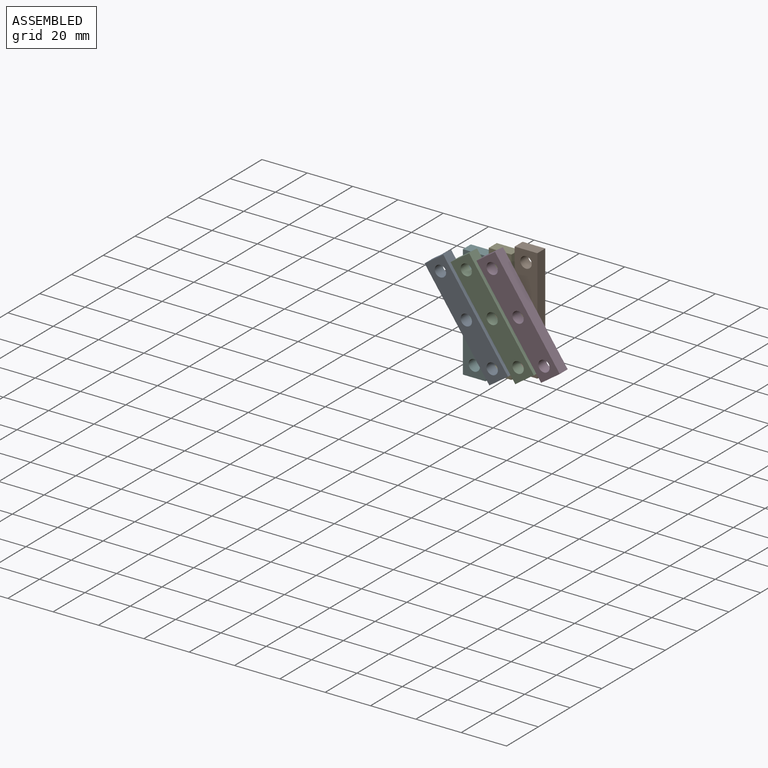
[diagram: assembled view]
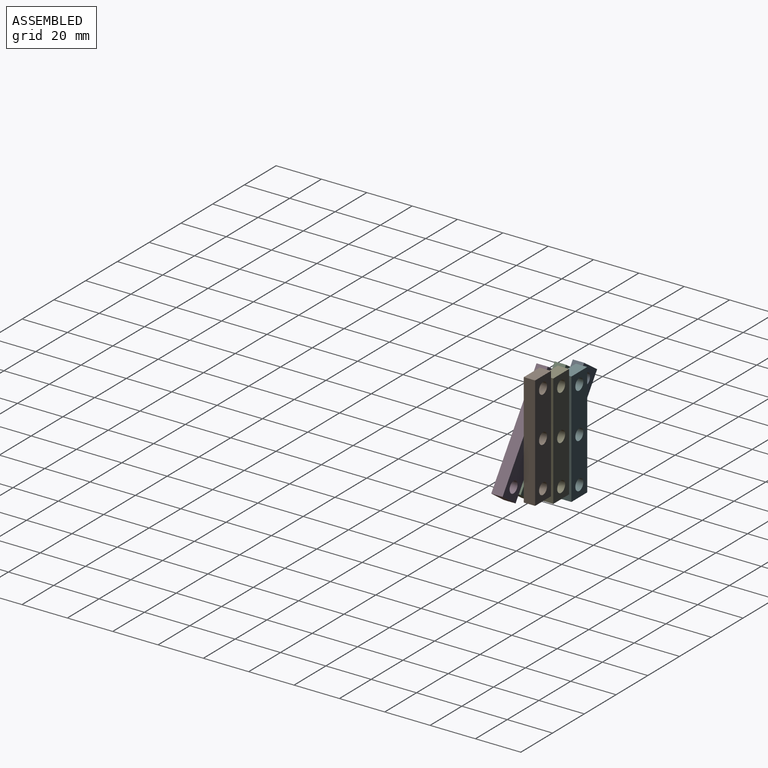
[diagram: assembled view, second angle]
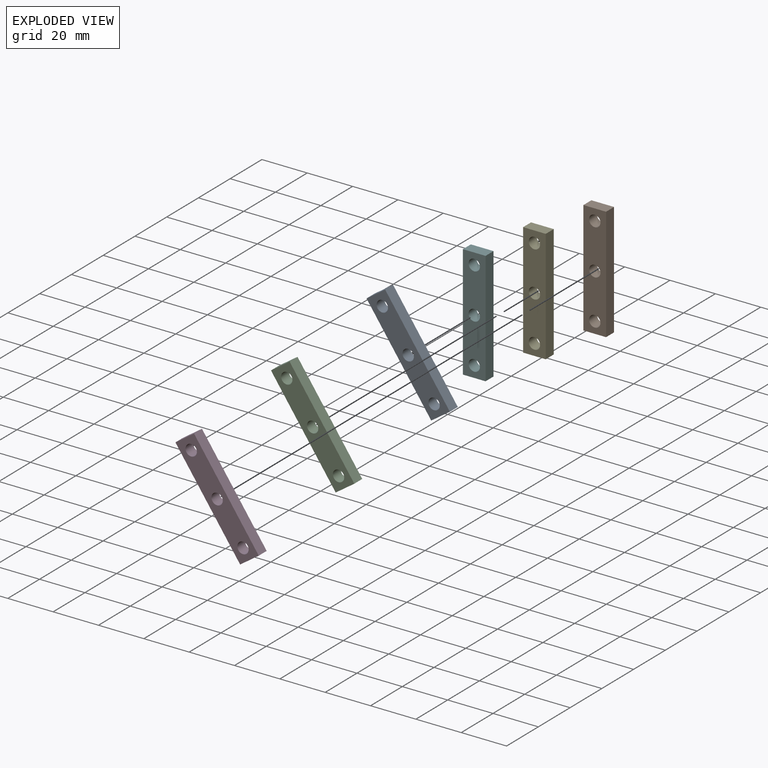
[diagram: exploded view]
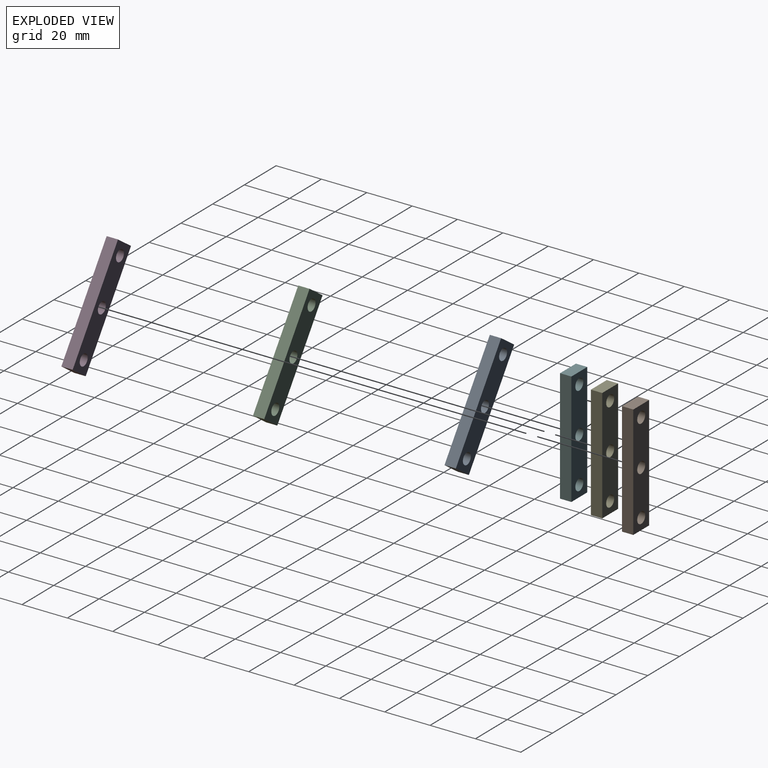
[diagram: exploded view, second angle]
ASSEMBLY  parts=6 mates=7
PART A: 9 faces, bbox 50x5x10 mm
  f0: plane 50x5mm, normal (0,0,-1), area 250mm2, adj f1,f6,f7,f8
  f1: plane 10x5mm, normal (1,0,0), area 50mm2, adj f0,f2,f7,f8
  f2: plane 50x5mm, normal (0,0,1), area 250mm2, adj f1,f6,f7,f8
  f3: cylinder r=2.5mm len=5mm, axis (0,1,0), area 78.5mm2, adj f7,f8
  f4: cylinder r=2.5mm len=5mm, axis (0,1,0), area 78.5mm2, adj f7,f8
  f5: cylinder r=2.5mm len=5mm, axis (0,1,0), area 78.5mm2, adj f7,f8
  f6: plane 10x5mm, normal (-1,0,0), area 50mm2, adj f0,f2,f7,f8
  f7: plane 50x10mm, normal (0,-1,0), area 441.1mm2, adj f0,f1,f2,f3,f4,f5,f6
  f8: plane 50x10mm, normal (0,1,0), area 441.1mm2, adj f0,f1,f2,f3,f4,f5,f6
PART B: same geometry as A
PART C: same geometry as A
PART D: same geometry as A
PART E: same geometry as A
PART F: same geometry as A
PLACE A rot(axis=(0,1,0),55.2deg) t=(-88.5,-31.16,-30.56)mm
PLACE B rot(axis=(0,1,0),90deg) t=(-65.66,-26.16,-23.4)mm
PLACE C rot(axis=(0,-1,0),124.8deg) t=(-77.08,-31.16,-26.98)mm
PLACE D rot(axis=(0,-1,0),124.8deg) t=(-65.66,-31.16,-23.4)mm
PLACE E rot(axis=(0,-1,0),90deg) t=(-77.08,-26.16,-26.98)mm
PLACE F rot(axis=(0,-1,0),90deg) t=(-88.5,-26.16,-30.56)mm
MATE revolute B.f3 <-> C.f4  axis (0,-1,0) through (-65.66,-31.16,-43.4)mm
MATE revolute A.f3 <-> E.f4  axis (0,1,0) through (-77.08,-31.16,-46.98)mm
MATE revolute F.f5 <-> A.f5  axis (0,-1,0) through (-88.5,-31.16,-30.56)mm
MATE revolute D.f3 <-> E.f3  axis (0,1,0) through (-77.08,-31.16,-6.98)mm
MATE revolute C.f3 <-> F.f3  axis (0,1,0) through (-88.5,-31.16,-10.56)mm
MATE revolute B.f5 <-> D.f5  axis (0,-1,0) through (-65.66,-31.16,-23.4)mm
MATE revolute E.f5 <-> C.f5  axis (0,-1,0) through (-77.08,-31.16,-26.98)mm
